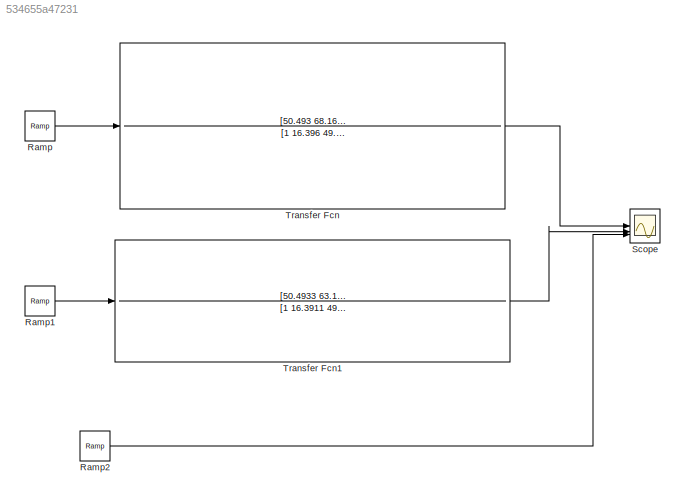
MODEL slx_534655a47231
KIND model
CONFIG AbsTol = auto
CONFIG EnableMultiTasking = off
CONFIG FixedStep = auto
CONFIG MaxStep = auto
CONFIG MinStep = auto
CONFIG RelTol = 1e-3
CONFIG SampleTimeConstraint = Unconstrained
CONFIG SolverName = VariableStepAuto
CONFIG StartTime = 0.0
CONFIG StopTime = 10.0
BLOCK [Reference] Ramp  REF=simulink/Sources/Ramp
  SourceBlock = simulink/Sources/Ramp
  SourceType = Ramp
BLOCK [Reference] Ramp1  REF=simulink/Sources/Ramp
  SourceBlock = simulink/Sources/Ramp
  SourceType = Ramp
BLOCK [Reference] Ramp2  REF=simulink/Sources/Ramp
  SourceBlock = simulink/Sources/Ramp
  SourceType = Ramp
BLOCK [Scope] Scope
  Floating = off
  NumInputPorts = 3
  ScopeSpecificationString = Simulink.scopes.TimeScopeBlockCfg('CurrentConfiguration', extmgr.ConfigurationSet(extmgr.Configuration('Core','General UI',true),extmgr.Configuration('Core','Source UI',true),extmgr.Configuration('Sources','WiredSimulink',true),extmgr.Configuration('Visuals','Time Domain',true,'SerializedDisplays',{struct('MinYLimReal','-1.25','MaxYLimReal','11.25','YLabelReal','','MinYLimMag','0.00000','MaxYLimMa...<+1342ch>
BLOCK [TransferFcn] Transfer Fcn
  Denominator = [1 16.396 49.946 88.701 68.352 6.311]
  Numerator = [50.493 68.166 6.311]
BLOCK [TransferFcn] Transfer Fcn1
  Denominator = [1 16.3911 49.8656 88.4569 63.1166]
  Numerator = [50.4933 63.1166]
LINE Ramp1:1 -> Transfer Fcn1:1
LINE Ramp2:1 -> Scope:3
LINE Ramp:1 -> Transfer Fcn:1
LINE Transfer Fcn1:1 -> Scope:2
LINE Transfer Fcn:1 -> Scope:1
